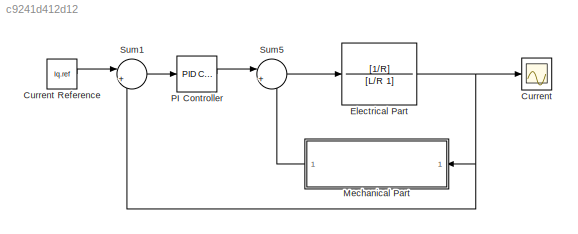
MODEL slx_c9241d412d12
KIND model
CONFIG AbsTol = auto
CONFIG FixedStep = auto
CONFIG MaxStep = auto
CONFIG MinStep = auto
CONFIG RelTol = 1e-3
CONFIG SampleTimeConstraint = Unconstrained
CONFIG Solver = VariableStepAuto
CONFIG SolverMode = Auto
CONFIG SolverName = VariableStepAuto
CONFIG StartTime = 0.0
CONFIG StopTime = 10.0
BLOCK [Scope] Current 
  Ports = [1]
  ScopeSpecificationString = C++SS(StrPVP('SaveName','ScopeData'))
BLOCK [Constant] Current Reference
  Value = Iq.ref
BLOCK [TransferFcn] Electrical Part
  Denominator = [L/R 1]
  Numerator = [1/R]
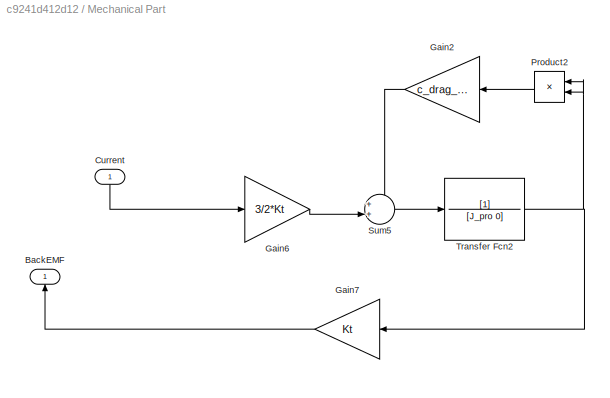
BLOCK [SubSystem] Mechanical Part 
  Ports = [1, 1]
  RequestExecContextInheritance = off
  Variant = off
BLOCK [Outport] Mechanical Part /BackEMF
  IconDisplay = Port number
BLOCK [Inport] Mechanical Part /Current
  IconDisplay = Port number
BLOCK [Gain] Mechanical Part /Gain2
  Gain = c_drag_pro
  OutDataTypeStr = Inherit: Inherit via internal rule
  ParamDataTypeStr = Inherit: Inherit via internal rule
  SaturateOnIntegerOverflow = off
BLOCK [Gain] Mechanical Part /Gain6
  Gain = 3/2*Kt
  OutDataTypeStr = Inherit: Inherit via internal rule
  ParamDataTypeStr = Inherit: Inherit via internal rule
  SaturateOnIntegerOverflow = off
BLOCK [Gain] Mechanical Part /Gain7
  Gain = Kt
  OutDataTypeStr = Inherit: Inherit via internal rule
  ParamDataTypeStr = Inherit: Inherit via internal rule
  SaturateOnIntegerOverflow = off
BLOCK [Product] Mechanical Part /Product2
  InputSameDT = off
  OutDataTypeStr = Inherit: Inherit via internal rule
  Ports = [2, 1]
  RndMeth = Floor
  SaturateOnIntegerOverflow = off
BLOCK [Sum] Mechanical Part /Sum5
  IconShape = round
  InputSameDT = off
  Inputs = ++|
  OutDataTypeStr = Inherit: Inherit via internal rule
  Ports = [2, 1]
  SaturateOnIntegerOverflow = off
BLOCK [TransferFcn] Mechanical Part /Transfer Fcn2
  Denominator = [J_pro 0]
BLOCK [Reference] PI Controller  REF=simulink/Continuous/PID Controller
  Ports = [1, 1]
  SourceBlock = simulink/Continuous/PID Controller
  SourceType = PID 1dof
BLOCK [Sum] Sum1
  IconShape = round
  InputSameDT = off
  Inputs = |+-
  OutDataTypeStr = Inherit: Inherit via internal rule
  Ports = [2, 1]
  SaturateOnIntegerOverflow = off
BLOCK [Sum] Sum5
  IconShape = round
  InputSameDT = off
  Inputs = |+-
  OutDataTypeStr = Inherit: Inherit via internal rule
  Ports = [2, 1]
  SaturateOnIntegerOverflow = off
LINE Current Reference:1 -> Sum1:1
NET Electrical Part:1 -> Current :1, Mechanical Part :1, Sum1:2
LINE Mechanical Part /Current:1 -> Mechanical Part /Gain6:1
LINE Mechanical Part /Gain2:1 -> Mechanical Part /Sum5:1
LINE Mechanical Part /Gain6:1 -> Mechanical Part /Sum5:2
LINE Mechanical Part /Gain7:1 -> Mechanical Part /BackEMF:1
LINE Mechanical Part /Product2:1 -> Mechanical Part /Gain2:1
LINE Mechanical Part /Sum5:1 -> Mechanical Part /Transfer Fcn2:1
NET Mechanical Part /Transfer Fcn2:1 -> Mechanical Part /Gain7:1, Mechanical Part /Product2:1, Mechanical Part /Product2:2
LINE Mechanical Part :1 -> Sum5:2
LINE PI Controller:1 -> Sum5:1
LINE Sum1:1 -> PI Controller:1
LINE Sum5:1 -> Electrical Part:1
note: NET lines group one-source signal fan-out (src -> all destinations, sorted); 1:1 wires keep LINE
